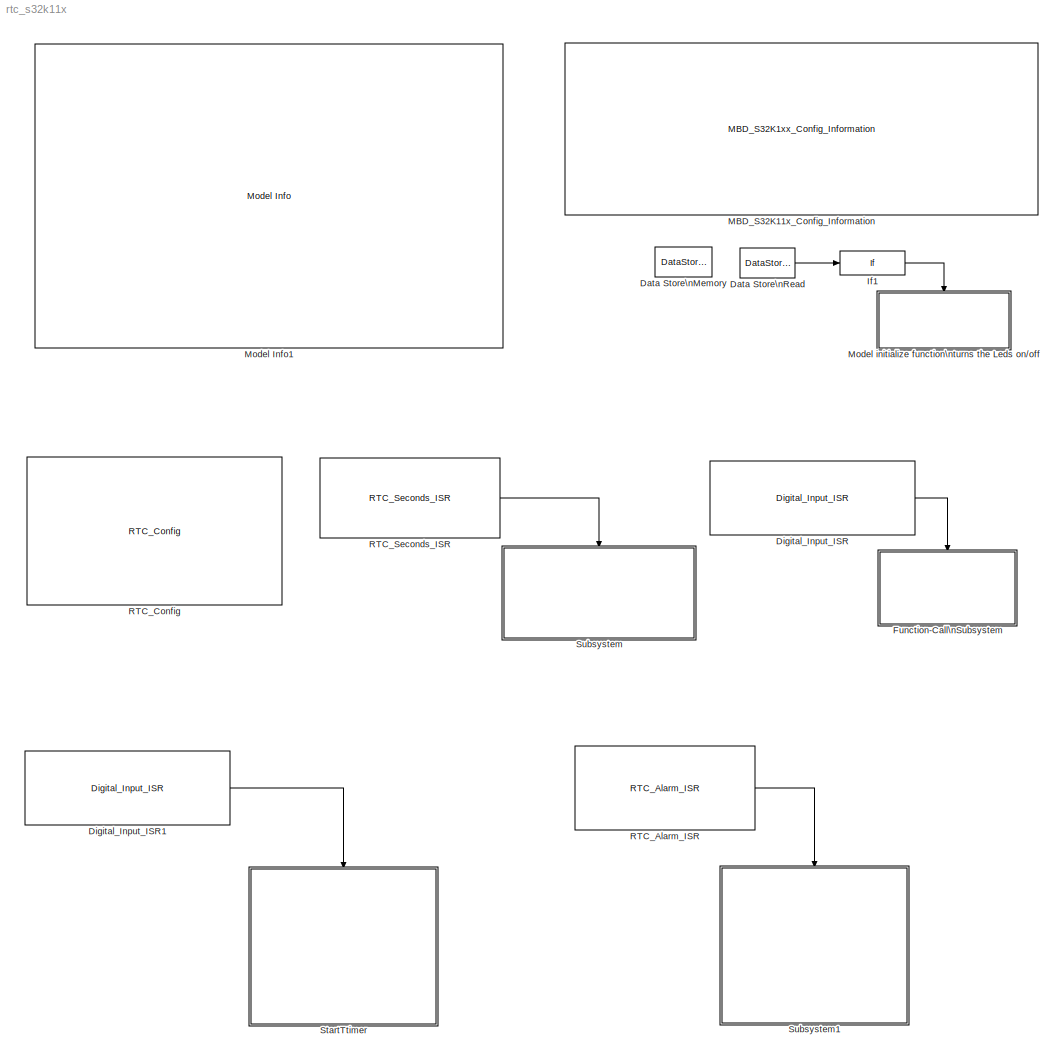
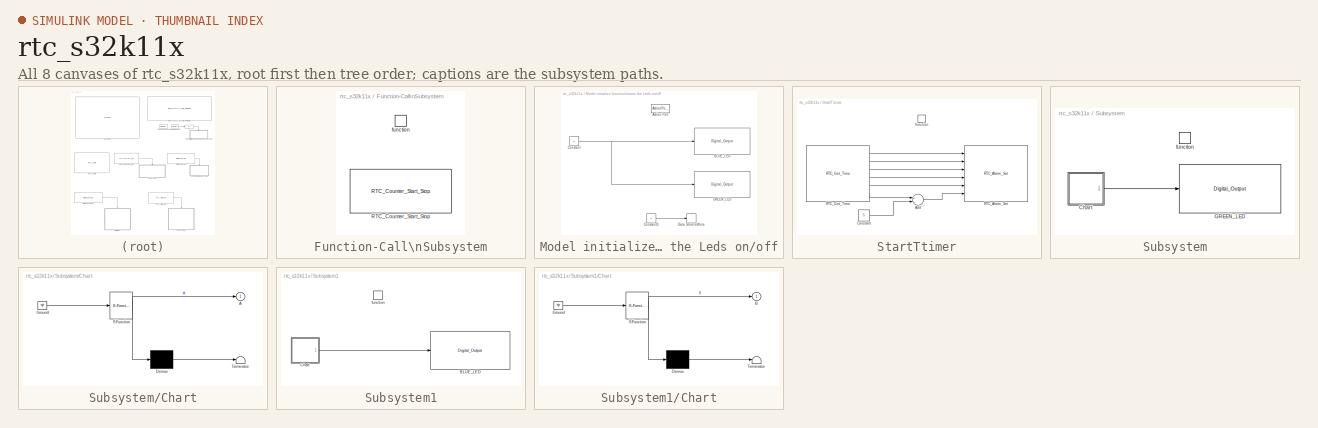
[diagram: thumbnail index - all 8 canvases of the model, root first then tree order]
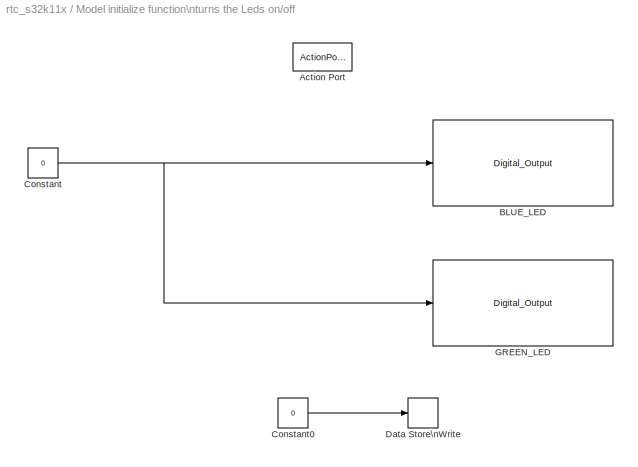
MODEL rtc_s32k11x
KIND model
CONFIG InitFcn = mbd_s32k_consistency_checks(bdroot(gcs));
BLOCK [DataStoreMemory] Data Store\nMemory
  DataStoreName = flag
  InitialValue = 1
  OutDataTypeStr = boolean
  ReadBeforeWriteMsg = warning
  SID = 2
  ShowAdditionalParam = off
  WriteAfterReadMsg = warning
  WriteAfterWriteMsg = warning
BLOCK [DataStoreRead] Data Store\nRead
  DataStoreName = flag
  Ports = [0, 1]
  SID = 3
BLOCK [Reference] Digital_Input_ISR  REF=mbd_s32k1xx_ec_toolbox/GPIO Blocks/Digital_Input_ISR
  Ports = [0, 1]
  SID = 4
  SourceBlock = mbd_s32k1xx_ec_toolbox/GPIO Blocks/Digital_Input_ISR
  SourceType = gpi_s32k_isr
  gpio_pin = PTD3: [PTD3 | Port D I/O]
  irqc = on rising-edge
  prio = 2
BLOCK [Reference] Digital_Input_ISR1  REF=mbd_s32k1xx_ec_toolbox/GPIO Blocks/Digital_Input_ISR
  Ports = [0, 1]
  SID = 39
  SourceBlock = mbd_s32k1xx_ec_toolbox/GPIO Blocks/Digital_Input_ISR
  SourceType = gpi_s32k_isr
  gpio_pin = PTD5: [PTD5 | Port D I/O]
  irqc = on rising-edge
  prio = 5
BLOCK [SubSystem] Function-Call\nSubsystem
  Ports = [0, 0, 0, 1]
  RequestExecContextInheritance = off
  SID = 6
  TreatAsAtomicUnit = on
  Variant = off
BLOCK [Reference] Function-Call\nSubsystem/RTC_Counter_Start_Stop  REF=mbd_s32k1xx_ec_toolbox/Core and System Blocks/RTC Blocks/RTC_Counter_Start_Stop
  Ports = []
  SID = 8
  SourceBlock = mbd_s32k1xx_ec_toolbox/Core and System Blocks/RTC Blocks/RTC_Counter_Start_Stop
  SourceType = rtc_s32k_counter_start_stop
  set_action = Start
BLOCK [TriggerPort] Function-Call\nSubsystem/function
  Ports = []
  SID = 7
  StatesWhenEnabling = held
  TriggerType = function-call
  VariantControl = Variant
BLOCK [If] If1
  IfExpression = u1 == 1
  Ports = [1, 1]
  SID = 10
  ShowElse = off
BLOCK [Reference] MBD_S32K11x_Config_Information  REF=mbd_s32k1xx_ec_toolbox/MBD_S32K1xx_Config_Information
  ADC_PcrCheckEnDis = on
  AMMCLIB_PcrCheckEnDis = on
  CMP_PcrCheckEnDis = on
  CSEc_PcrCheckEnDis = on
  ConfigParams_PcrCheckEnDis = on
  FM_PcrCheckEnDis = on
  FTM_Dual_Edge_Inputs_PcrCheckEnDis = on
  FTM_Hall_Sensor_Inputs_PcrCheckEnDis = on
  FTM_Input_Edge_Inputs_PcrCheckEnDis = on
  FTM_PWM_PcrCheckEnDis = on
  FTM_Quadrature_Inputs_PcrCheckEnDis = on
  FlexCAN_PcrCheckEnDis = on
  FlexIO_PcrCheckEnDis = on
  GPIO_InputPcrCheckEnDis = on
  GPIO_OutputPcrCheckEnDis = on
  LIN_PcrCheckEnDis = on
  LPI2C_PcrCheckEnDis = on
  LPSPI_PcrCheckEnDis = on
  LPTMR_PcrCheckEnDis = on
  LPUART_PcrCheckEnDis = on
  ModelRef_PcrCheckEnDis = on
  PDB0_PcrCheckEnDis = on
  PIT_PcrCheckEnDis = on
  Ports = []
  Profile_PcrCheckEnDis = on
  RTC_PcrCheckEnDis = on
  SBC_PcrCheckEnDis = on
  SID = 1
  SourceBlock = mbd_s32k1xx_ec_toolbox/MBD_S32K1xx_Config_Information
  SourceType = MBDTBX_EC_S32K
  WDOG_PcrCheckEnDis = on
  config_params = []
  disp_str = Target : S32K144-64KB_SRAM\nPackage : 100-pin\nSystem clock : 80 MHz\nXTAL clock : External 8 MHz\nCompiler : IAR\nTarget Type : FLASH\nDownload Code after build : off\nStep Tick Interrupt Priority : 15
  ds_import_enable = on
  eDMA_PcrCheckEnDis = on
  gcc_target_assemble_opts = -mcpu=cortex-m0plus -mthumb -g
  gcc_target_compile_opts = -mcpu=cortex-m0plus -mthumb -O1 -g -gstrict-dwarf
  gcc_target_default_lcf = on
  gcc_target_link_opts = -mcpu=cortex-m0plus -mthumb
  gcc_target_user_lcf = S32K118_25_flash.ld
  ghs_target_assemble_opts = -mcpu=cortexm0plus -mthumb -fsoft --gnu_asm
  ghs_target_compile_opts = -mcpu=cortexm0plus -mthumb -fsoft -Ogeneral -Wundef -Wimplicit-int -Wshadow -Wtrigraphs --no_commons --gnu_asm -gnu99 -gdwarf-2 -G
  ghs_target_default_lcf = on
  ghs_target_link_opts = -mcpu=cortexm0plus -mthumb -fsoft
  ghs_target_user_lcf = S32K118_25_flash.ld
  iar_target_assemble_opts = --thumb
  iar_target_compile_opts = --thumb -Ol -e --debug --dlib_config normal
  iar_target_default_lcf = on
  iar_target_link_opts = --no_exceptions --vfe --inline
  iar_target_user_lcf = S32K118_25_flash.icf
  mbdt_ver = 0
  mcu_steptick_prio = 3
  mcu_steptick_timer = LPIT Channel 0
  mcu_system_clock_freq = 40
  mcu_target_name = S32K118
  mcu_target_package = 64-LQFP
  mcu_target_sram_size = 25KB
  mcu_xtal_freq = External 40
  pil_download_enable = off
  pil_download_rate = 57600
  pil_opensda_drive = Custom
  pil_opensda_drive_custom = D
  pil_uart_instance = 0
  pil_uart_rx = PTA2: [LPUART0_RX | Receive]
  pil_uart_tx = PTA3: [LPUART0_TX | Transmit]
  rbl_com_port = Custom
  rbl_com_port_custom = COM1
  rbl_download_enable = on
  rbl_download_interface = OpenSDA
  rbl_restart_request = off
  rbl_start_delay = 5000
  target_compiler = GCC
  target_memory = FLASH
BLOCK [Reference] Model Info1  REF=simulink/Model-Wide\nUtilities/Model Info
  DisplayStringWithTags = Model Name: %<ModelName>\n\nDescription: %<Description>
  Frame = off
  HorizontalTextAlignment = Left
  LeftAlignmentValue = 0.02
  MaskDisplayString = Model Name: rtc_s32k11x\\n\\nDescription: This model demonstrates the \"Real Time Clock\" functionality by configuring\\nthe RTC module to deliver 1Hz Seconds interrupt  and to set an alarm for \\n5 seconds since the current time. \\n\\nValidation: When the processor boots up, the RTC is configured. A Seconds \\nISR was added to toggle the Green LED at 1Hz frecquency. When the SW2 \\nbutton is pre...<+263ch>
  Ports = []
  SID = 38
  SourceBlock = simulink/Model-Wide\nUtilities/Model Info
  SourceProductBaseCode = SL
  SourceProductName = Simulink
  SourceType = CMBlock
BLOCK [SubSystem] Model initialize function\nturns the Leds on//off
  Ports = [0, 0, 0, 0, 0, 0, 0, 1]
  RequestExecContextInheritance = off
  SID = 11
  Variant = off
BLOCK [ActionPort] Model initialize function\nturns the Leds on//off/Action Port
  SID = 12
BLOCK [Reference] Model initialize function\nturns the Leds on//off/BLUE_LED  REF=mbd_s32k1xx_ec_toolbox/GPIO Blocks/Digital_Output
  Ports = [1]
  SID = 13
  SourceBlock = mbd_s32k1xx_ec_toolbox/GPIO Blocks/Digital_Output
  SourceType = gpio_s32k_output
  drive_strength = High
  gpio_pin = PTE8: [PTE8 | Port E I/O]
  init_val = Low
BLOCK [Constant] Model initialize function\nturns the Leds on//off/Constant
  OutDataTypeStr = boolean
  SID = 14
  Value = 0
BLOCK [Constant] Model initialize function\nturns the Leds on//off/Constant0
  OutDataTypeStr = boolean
  SID = 15
  Value = 0
BLOCK [DataStoreWrite] Model initialize function\nturns the Leds on//off/Data Store\nWrite
  DataStoreName = flag
  Ports = [1]
  SID = 16
BLOCK [Reference] Model initialize function\nturns the Leds on//off/GREEN_LED  REF=mbd_s32k1xx_ec_toolbox/GPIO Blocks/Digital_Output
  Ports = [1]
  SID = 17
  SourceBlock = mbd_s32k1xx_ec_toolbox/GPIO Blocks/Digital_Output
  SourceType = gpio_s32k_output
  drive_strength = Low
  gpio_pin = PTD15: [PTD15 | Port D I/O]
  init_val = Low
BLOCK [Reference] RTC_Alarm_ISR  REF=mbd_s32k1xx_ec_toolbox/Core and System Blocks/RTC Blocks/RTC_Alarm_ISR
  Ports = [0, 1]
  Priority = 1
  SID = 18
  SourceBlock = mbd_s32k1xx_ec_toolbox/Core and System Blocks/RTC Blocks/RTC_Alarm_ISR
  SourceType = rtc_s32k_alarm_isr
BLOCK [Reference] RTC_Config  REF=mbd_s32k1xx_ec_toolbox/Core and System Blocks/RTC Blocks/RTC_Config
  Ports = []
  Priority = 2
  SID = 19
  SourceBlock = mbd_s32k1xx_ec_toolbox/Core and System Blocks/RTC Blocks/RTC_Config
  SourceType = rtc_s32k_config
  clock_input = 1KHz LPO
  clock_output = Disabled
  comp_interval = 0
  comp_state = off
  comp_value = 0
  date_day = 1
  date_month = 1
  date_year = 1970
  show_adv_opts = on
  start_counter = off
  state_read_only = off
  state_update = off
  state_w_access = off
  time_hour = 0
  time_min = 0
  time_sec = 0
BLOCK [Reference] RTC_Seconds_ISR  REF=mbd_s32k1xx_ec_toolbox/Core and System Blocks/RTC Blocks/RTC_Seconds_ISR
  Ports = [0, 1]
  SID = 42
  SourceBlock = mbd_s32k1xx_ec_toolbox/Core and System Blocks/RTC Blocks/RTC_Seconds_ISR
  SourceType = rtc_s32k_seconds_isr
  sec_irq_freq = 1Hz
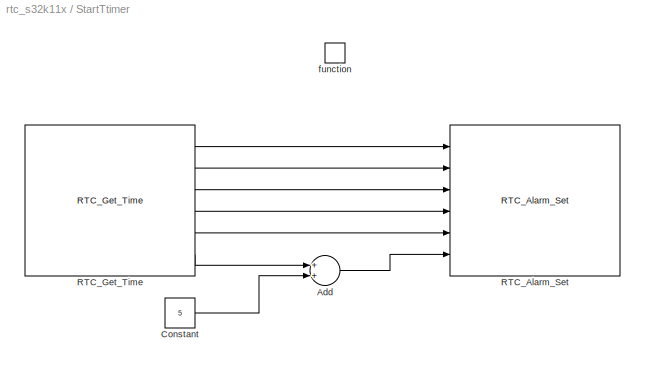
BLOCK [SubSystem] StartTtimer
  Ports = [0, 0, 0, 1]
  RequestExecContextInheritance = off
  SID = 21
  Variant = off
BLOCK [Sum] StartTtimer/Add
  InputSameDT = off
  OutDataTypeStr = Inherit: Inherit via internal rule
  Ports = [2, 1]
  Priority = 2
  SID = 23
  SaturateOnIntegerOverflow = off
BLOCK [Constant] StartTtimer/Constant
  OutDataTypeStr = uint8
  SID = 24
  Value = 5
BLOCK [Reference] StartTtimer/RTC_Alarm_Set  REF=mbd_s32k1xx_ec_toolbox/Core and System Blocks/RTC Blocks/RTC_Alarm_Set
  Ports = [6]
  Priority = 3
  SID = 25
  SourceBlock = mbd_s32k1xx_ec_toolbox/Core and System Blocks/RTC Blocks/RTC_Alarm_Set
  SourceType = rtc_s32k_alarm_set
  date_day = 1
  date_month = 1
  date_year = 1970
  forever = on
  inputs_enable = on
  interval = 5
  repeat = off
  repeats = 0
  show_adv_opts = on
  time_hour = 0
  time_min = 0
  time_sec = 0
BLOCK [Reference] StartTtimer/RTC_Get_Time  REF=mbd_s32k1xx_ec_toolbox/Core and System Blocks/RTC Blocks/RTC_Get_Time
  Ports = [0, 6]
  Priority = 1
  SID = 26
  SourceBlock = mbd_s32k1xx_ec_toolbox/Core and System Blocks/RTC Blocks/RTC_Get_Time
  SourceType = rtc_s32k_get_time
BLOCK [TriggerPort] StartTtimer/function
  Ports = []
  SID = 40
  StatesWhenEnabling = held
  TriggerType = function-call
  VariantControl = Variant
BLOCK [SubSystem] Subsystem
  Ports = [0, 0, 0, 1]
  RequestExecContextInheritance = off
  SID = 27
  Variant = off
BLOCK [SubSystem] Subsystem/Chart
  ErrorFcn = Stateflow.Translate.translate
  PermitHierarchicalResolution = ExplicitOnly
  Ports = [0, 1]
  RequestExecContextInheritance = off
  SFBlockType = Chart
  SID = 29
  TreatAsAtomicUnit = on
  Variant = off
BLOCK [Outport] Subsystem/Chart/ A
  IconDisplay = Port number
  SID = 29::6
BLOCK [Demux] Subsystem/Chart/ Demux 
  Outputs = 1
  Ports = [1, 1]
  SID = 29::40
BLOCK [Ground] Subsystem/Chart/ Ground 
  SID = 29::42
BLOCK [S-Function] Subsystem/Chart/ SFunction 
  EnableBusSupport = off
  FunctionName = sf_sfun
  PortCounts = [1 2]
  Ports = [1, 2]
  SFcnIsStateOwnerBlock = off
  SFunctionDeploymentMode = off
  SID = 29::39
  Tag = Stateflow S-Function rtc_s32k11x 3
BLOCK [Terminator] Subsystem/Chart/ Terminator 
  SID = 29::41
BLOCK [Reference] Subsystem/GREEN_LED  REF=mbd_s32k1xx_ec_toolbox/GPIO Blocks/Digital_Output
  Ports = [1]
  SID = 30
  SourceBlock = mbd_s32k1xx_ec_toolbox/GPIO Blocks/Digital_Output
  SourceType = gpio_s32k_output
  drive_strength = Low
  gpio_pin = PTD15: [PTD15 | Port D I/O]
  init_val = Low
BLOCK [TriggerPort] Subsystem/function
  Ports = []
  SID = 28
  StatesWhenEnabling = held
  TriggerType = function-call
  VariantControl = Variant
BLOCK [SubSystem] Subsystem1
  Ports = [0, 0, 0, 1]
  RequestExecContextInheritance = off
  SID = 31
  Variant = off
BLOCK [Reference] Subsystem1/BLUE_LED  REF=mbd_s32k1xx_ec_toolbox/GPIO Blocks/Digital_Output
  Ports = [1]
  SID = 33
  SourceBlock = mbd_s32k1xx_ec_toolbox/GPIO Blocks/Digital_Output
  SourceType = gpio_s32k_output
  drive_strength = High
  gpio_pin = PTE8: [PTE8 | Port E I/O]
  init_val = Low
BLOCK [SubSystem] Subsystem1/Chart
  ErrorFcn = Stateflow.Translate.translate
  PermitHierarchicalResolution = ExplicitOnly
  Ports = [0, 1]
  RequestExecContextInheritance = off
  SFBlockType = Chart
  SID = 34
  TreatAsAtomicUnit = on
  Variant = off
BLOCK [Outport] Subsystem1/Chart/ B
  IconDisplay = Port number
  SID = 34::6
BLOCK [Demux] Subsystem1/Chart/ Demux 
  Outputs = 1
  Ports = [1, 1]
  SID = 34::40
BLOCK [Ground] Subsystem1/Chart/ Ground 
  SID = 34::42
BLOCK [S-Function] Subsystem1/Chart/ SFunction 
  EnableBusSupport = off
  FunctionName = sf_sfun
  PortCounts = [1 2]
  Ports = [1, 2]
  SFcnIsStateOwnerBlock = off
  SFunctionDeploymentMode = off
  SID = 34::39
  Tag = Stateflow S-Function rtc_s32k11x 2
BLOCK [Terminator] Subsystem1/Chart/ Terminator 
  SID = 34::41
BLOCK [TriggerPort] Subsystem1/function
  Ports = []
  SID = 32
  StatesWhenEnabling = held
  TriggerType = function-call
  VariantControl = Variant
LINE Data Store\nRead:1 -> If1:1
LINE Digital_Input_ISR1:1 -> StartTtimer:trigger
LINE Digital_Input_ISR:1 -> Function-Call\nSubsystem:trigger
LINE If1:1 -> Model initialize function\nturns the Leds on//off:ifaction
LINE Model initialize function\nturns the Leds on//off/Constant0:1 -> Model initialize function\nturns the Leds on//off/Data Store\nWrite:1
NET Model initialize function\nturns the Leds on//off/Constant:1 -> Model initialize function\nturns the Leds on//off/BLUE_LED:1, Model initialize function\nturns the Leds on//off/GREEN_LED:1
LINE RTC_Alarm_ISR:1 -> Subsystem1:trigger
LINE RTC_Seconds_ISR:1 -> Subsystem:trigger
LINE StartTtimer/Add:1 -> StartTtimer/RTC_Alarm_Set:6
LINE StartTtimer/Constant:1 -> StartTtimer/Add:2
LINE StartTtimer/RTC_Get_Time:1 -> StartTtimer/RTC_Alarm_Set:1
LINE StartTtimer/RTC_Get_Time:2 -> StartTtimer/RTC_Alarm_Set:2
LINE StartTtimer/RTC_Get_Time:3 -> StartTtimer/RTC_Alarm_Set:3
LINE StartTtimer/RTC_Get_Time:4 -> StartTtimer/RTC_Alarm_Set:4
LINE StartTtimer/RTC_Get_Time:5 -> StartTtimer/RTC_Alarm_Set:5
LINE StartTtimer/RTC_Get_Time:6 -> StartTtimer/Add:1
LINE Subsystem/Chart/ Demux :1 -> Subsystem/Chart/ Terminator :1
LINE Subsystem/Chart/ Ground :1 -> Subsystem/Chart/ SFunction :1
LINE Subsystem/Chart/ SFunction :1 -> Subsystem/Chart/ Demux :1
LINE Subsystem/Chart/ SFunction :2 -> Subsystem/Chart/ A:1
LINE Subsystem/Chart:1 -> Subsystem/GREEN_LED:1
LINE Subsystem1/Chart/ Demux :1 -> Subsystem1/Chart/ Terminator :1
LINE Subsystem1/Chart/ Ground :1 -> Subsystem1/Chart/ SFunction :1
LINE Subsystem1/Chart/ SFunction :1 -> Subsystem1/Chart/ Demux :1
LINE Subsystem1/Chart/ SFunction :2 -> Subsystem1/Chart/ B:1
LINE Subsystem1/Chart:1 -> Subsystem1/BLUE_LED:1
note: NET lines group one-source signal fan-out (src -> all destinations, sorted); 1:1 wires keep LINE
CHART Subsystem1/Chart states=2 transitions=3
  STATE_LABEL 'B'
  STATE_LABEL 'B1'
CHART Subsystem/Chart states=2 transitions=3
  STATE_LABEL 'A'
  STATE_LABEL 'A1'
